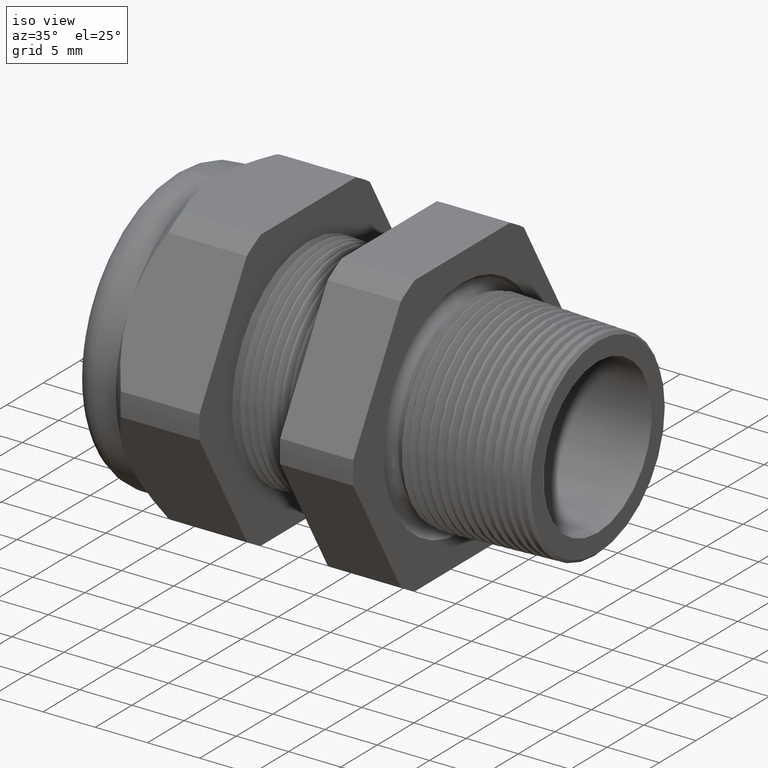
[diagram: clean part render]
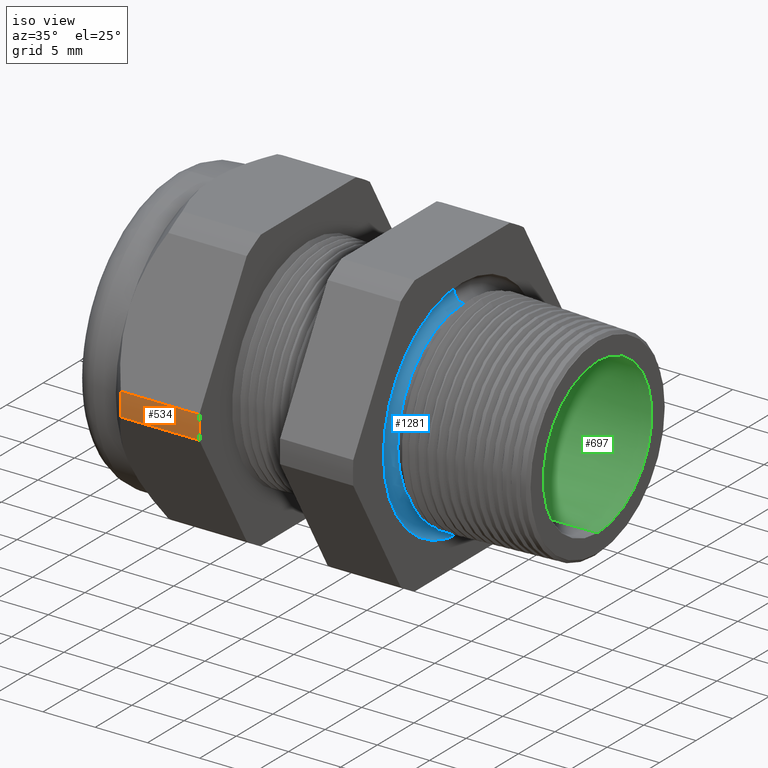
[diagram: same view with three faces highlighted in distinct colors, each labeled with its STEP entity id]
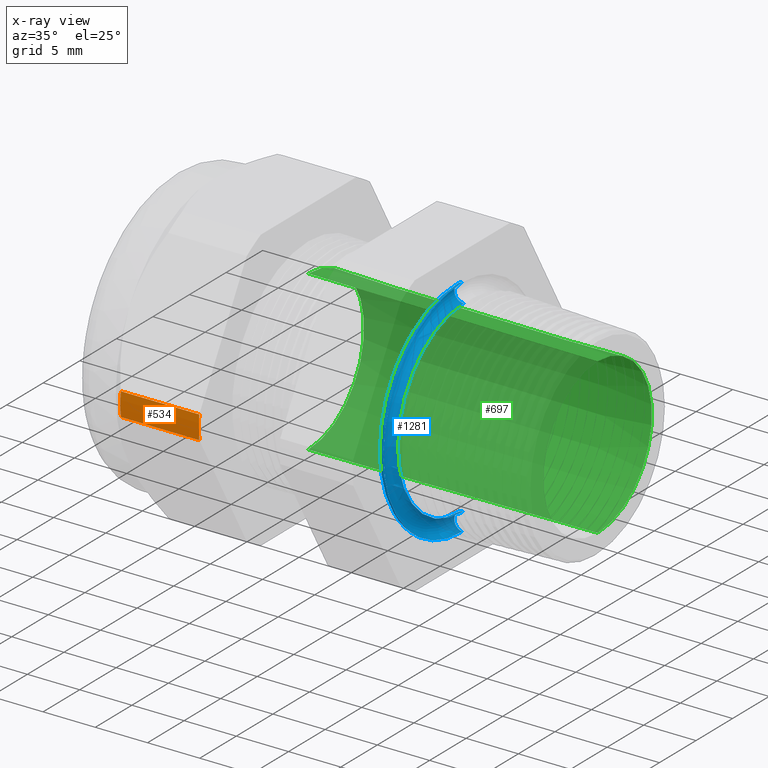
[diagram: x-ray of the same camera — body ghosted, the three highlighted faces saturated]
A machine part, iso view with three faces highlighted in distinct colors.
The next image is the same camera in x-ray (body ghosted, the three faces saturated) — at least one of them is partly hidden behind the body in this view.
Their STEP definitions:

[orange] entity #534 — the highlighted cylindrical surface (partial cylindrical patch) has radius 14.9428 mm, axis along (-1, 0, 0).
#467 = EDGE_CURVE ( 'NONE', #468, #469, #2465, .T. ) ;
#468 = VERTEX_POINT ( 'NONE', #2461 ) ;
#469 = VERTEX_POINT ( 'NONE', #2460 ) ;
#515 = ORIENTED_EDGE ( 'NONE', *, *, #467, .F. ) ;
#516 = ORIENTED_EDGE ( 'NONE', *, *, #517, .F. ) ;
#517 = EDGE_CURVE ( 'NONE', #538, #468, #2602, .T. ) ;
#534 = ADVANCED_FACE ( 'NONE', ( #2612 ), #2610, .T. ) ;
#535 = EDGE_LOOP ( 'NONE', ( #536, #540, #515, #516 ) ) ;
#536 = ORIENTED_EDGE ( 'NONE', *, *, #537, .T. ) ;
#537 = EDGE_CURVE ( 'NONE', #538, #539, #2611, .T. ) ;
#538 = VERTEX_POINT ( 'NONE', #2658 ) ;
#539 = VERTEX_POINT ( 'NONE', #2657 ) ;
#540 = ORIENTED_EDGE ( 'NONE', *, *, #541, .T. ) ;
#541 = EDGE_CURVE ( 'NONE', #539, #469, #2656, .T. ) ;
#2460 = CARTESIAN_POINT ( 'NONE',  ( -1.186345669291338600, -0.5866618723924791300, -0.04387183015273717100 ) ) ;
#2461 = CARTESIAN_POINT ( 'NONE',  ( -0.8903149606299207700, -0.5866618723924791300, -0.04387183015273717100 ) ) ;
#2462 = DIRECTION ( 'NONE',  ( -1.000000000000000000, 0.0000000000000000000, 0.0000000000000000000 ) ) ;
#2463 = VECTOR ( 'NONE', #2462, 39.37007874015748100 ) ;
#2464 = CARTESIAN_POINT ( 'NONE',  ( 0.2000000000000000400, -0.5866618723924791300, -0.04387183015273717100 ) ) ;
#2465 = LINE ( 'NONE', #2464, #2463 ) ;
#2598 = DIRECTION ( 'NONE',  ( 0.0000000000000000000, 0.0000000000000000000, -1.000000000000000000 ) ) ;
#2599 = DIRECTION ( 'NONE',  ( 1.000000000000000000, 0.0000000000000000000, 0.0000000000000000000 ) ) ;
#2600 = CARTESIAN_POINT ( 'NONE',  ( -0.8903149606299211000, 0.0000000000000000000, 0.0000000000000000000 ) ) ;
#2601 = AXIS2_PLACEMENT_3D ( 'NONE', #2600, #2599, #2598 ) ;
#2602 = CIRCLE ( 'NONE', #2601, 0.5883000000000000500 ) ;
#2604 = VECTOR ( 'NONE', #2659, 39.37007874015748100 ) ;
#2605 = CARTESIAN_POINT ( 'NONE',  ( 0.2000000000000000400, -0.5866618723924792400, 0.04387183015273651100 ) ) ;
#2606 = DIRECTION ( 'NONE',  ( 0.0000000000000000000, 0.0000000000000000000, 1.000000000000000000 ) ) ;
#2607 = DIRECTION ( 'NONE',  ( -1.000000000000000000, 0.0000000000000000000, 0.0000000000000000000 ) ) ;
#2608 = CARTESIAN_POINT ( 'NONE',  ( 0.2000000000000000400, 0.0000000000000000000, 0.0000000000000000000 ) ) ;
#2609 = AXIS2_PLACEMENT_3D ( 'NONE', #2608, #2607, #2606 ) ;
#2610 = CYLINDRICAL_SURFACE ( 'NONE', #2609, 0.5883000000000000500 ) ;
#2611 = LINE ( 'NONE', #2605, #2604 ) ;
#2612 = FACE_OUTER_BOUND ( 'NONE', #535, .T. ) ;
#2652 = DIRECTION ( 'NONE',  ( 0.0000000000000000000, 0.0000000000000000000, -1.000000000000000000 ) ) ;
#2653 = DIRECTION ( 'NONE',  ( 1.000000000000000000, 0.0000000000000000000, 0.0000000000000000000 ) ) ;
#2654 = CARTESIAN_POINT ( 'NONE',  ( -1.186345669291338600, 0.0000000000000000000, 0.0000000000000000000 ) ) ;
#2655 = AXIS2_PLACEMENT_3D ( 'NONE', #2654, #2653, #2652 ) ;
#2656 = CIRCLE ( 'NONE', #2655, 0.5883000000000000500 ) ;
#2657 = CARTESIAN_POINT ( 'NONE',  ( -1.186345669291338300, -0.5866618723924792400, 0.04387183015273658100 ) ) ;
#2658 = CARTESIAN_POINT ( 'NONE',  ( -0.8903149606299207700, -0.5866618723924792400, 0.04387183015273651100 ) ) ;
#2659 = DIRECTION ( 'NONE',  ( -1.000000000000000000, 0.0000000000000000000, 0.0000000000000000000 ) ) ;

[blue] entity #1281 — the highlighted toroidal blend (fillet) surface has major radius 9.8993 mm and minor (blend) radius 0.889 mm.
#1203 = EDGE_CURVE ( 'NONE', #1214, #1204, #3654, .T. ) ;
#1204 = VERTEX_POINT ( 'NONE', #3645 ) ;
#1205 = ORIENTED_EDGE ( 'NONE', *, *, #1209, .F. ) ;
#1209 = EDGE_CURVE ( 'NONE', #1228, #1204, #3643, .T. ) ;
#1213 = EDGE_CURVE ( 'NONE', #1220, #1214, #3632, .T. ) ;
#1214 = VERTEX_POINT ( 'NONE', #3628 ) ;
#1220 = VERTEX_POINT ( 'NONE', #3679 ) ;
#1228 = VERTEX_POINT ( 'NONE', #3719 ) ;
#1230 = ORIENTED_EDGE ( 'NONE', *, *, #1270, .F. ) ;
#1231 = ORIENTED_EDGE ( 'NONE', *, *, #1213, .T. ) ;
#1270 = EDGE_CURVE ( 'NONE', #1220, #1228, #3725, .T. ) ;
#1273 = EDGE_LOOP ( 'NONE', ( #1230, #1231, #1282, #1205 ) ) ;
#1281 = ADVANCED_FACE ( 'NONE', ( #3771 ), #3770, .F. ) ;
#1282 = ORIENTED_EDGE ( 'NONE', *, *, #1203, .T. ) ;
#3628 = CARTESIAN_POINT ( 'NONE',  ( -0.3100000000000000000, 5.197106747389359900E-017, 0.4243759711786115300 ) ) ;
#3629 = DIRECTION ( 'NONE',  ( 0.0000000000000000000, 1.224646799147352700E-016, 1.000000000000000000 ) ) ;
#3630 = DIRECTION ( 'NONE',  ( 0.0000000000000000000, 1.000000000000000000, -1.224646799147353200E-016 ) ) ;
#3631 = AXIS2_PLACEMENT_3D ( 'NONE', #3637, #3630, #3629 ) ;
#3632 = CIRCLE ( 'NONE', #3631, 0.03499999999999996900 ) ;
#3637 = CARTESIAN_POINT ( 'NONE',  ( -0.3049999999999998300, 4.772876651899397700E-017, 0.3897349550272340400 ) ) ;
#3639 = DIRECTION ( 'NONE',  ( 0.0000000000000000000, 0.0000000000000000000, -1.000000000000000000 ) ) ;
#3640 = DIRECTION ( 'NONE',  ( 0.0000000000000000000, -1.000000000000000000, 0.0000000000000000000 ) ) ;
#3641 = CARTESIAN_POINT ( 'NONE',  ( -0.3049999999999998300, 0.0000000000000000000, -0.3897349550272340400 ) ) ;
#3642 = AXIS2_PLACEMENT_3D ( 'NONE', #3641, #3640, #3639 ) ;
#3643 = CIRCLE ( 'NONE', #3642, 0.03499999999999996900 ) ;
#3645 = CARTESIAN_POINT ( 'NONE',  ( -0.3100000000000000000, 0.0000000000000000000, -0.4243759711786115300 ) ) ;
#3646 = DIRECTION ( 'NONE',  ( 0.0000000000000000000, 0.0000000000000000000, -1.000000000000000000 ) ) ;
#3647 = DIRECTION ( 'NONE',  ( 1.000000000000000000, 0.0000000000000000000, 0.0000000000000000000 ) ) ;
#3648 = CARTESIAN_POINT ( 'NONE',  ( -0.3100000000000000000, 0.0000000000000000000, 0.0000000000000000000 ) ) ;
#3649 = AXIS2_PLACEMENT_3D ( 'NONE', #3648, #3647, #3646 ) ;
#3654 = CIRCLE ( 'NONE', #3649, 0.4243759711786115300 ) ;
#3679 = CARTESIAN_POINT ( 'NONE',  ( -0.3049999999999998300, 4.344250272197825000E-017, 0.3547349550272340700 ) ) ;
#3719 = CARTESIAN_POINT ( 'NONE',  ( -0.3049999999999998300, 0.0000000000000000000, -0.3547349550272340700 ) ) ;
#3721 = DIRECTION ( 'NONE',  ( 0.0000000000000000000, 0.0000000000000000000, -1.000000000000000000 ) ) ;
#3722 = DIRECTION ( 'NONE',  ( 1.000000000000000000, 0.0000000000000000000, 0.0000000000000000000 ) ) ;
#3723 = CARTESIAN_POINT ( 'NONE',  ( -0.3049999999999998300, 0.0000000000000000000, 0.0000000000000000000 ) ) ;
#3724 = AXIS2_PLACEMENT_3D ( 'NONE', #3723, #3722, #3721 ) ;
#3725 = CIRCLE ( 'NONE', #3724, 0.3547349550272340700 ) ;
#3766 = DIRECTION ( 'NONE',  ( 0.0000000000000000000, 0.0000000000000000000, -1.000000000000000000 ) ) ;
#3767 = DIRECTION ( 'NONE',  ( 1.000000000000000000, 0.0000000000000000000, 0.0000000000000000000 ) ) ;
#3768 = CARTESIAN_POINT ( 'NONE',  ( -0.3049999999999998300, 0.0000000000000000000, 0.0000000000000000000 ) ) ;
#3769 = AXIS2_PLACEMENT_3D ( 'NONE', #3768, #3767, #3766 ) ;
#3770 = TOROIDAL_SURFACE ( 'NONE', #3769, 0.3897349550272340400, 0.03499999999999994800 ) ;
#3771 = FACE_OUTER_BOUND ( 'NONE', #1273, .T. ) ;

[green] entity #697 — the highlighted conical surface has half-angle 0.424 deg.
#144 = EDGE_CURVE ( 'NONE', #147, #145, #1872, .T. ) ;
#145 = VERTEX_POINT ( 'NONE', #1863 ) ;
#147 = VERTEX_POINT ( 'NONE', #1862 ) ;
#150 = VERTEX_POINT ( 'NONE', #1856 ) ;
#151 = EDGE_CURVE ( 'NONE', #150, #152, #1855, .T. ) ;
#152 = VERTEX_POINT ( 'NONE', #1851 ) ;
#696 = EDGE_CURVE ( 'NONE', #152, #145, #2973, .T. ) ;
#697 = ADVANCED_FACE ( 'NONE', ( #2968 ), #2967, .F. ) ;
#698 = EDGE_LOOP ( 'NONE', ( #699, #700, #702, #703 ) ) ;
#699 = ORIENTED_EDGE ( 'NONE', *, *, #151, .F. ) ;
#700 = ORIENTED_EDGE ( 'NONE', *, *, #701, .T. ) ;
#701 = EDGE_CURVE ( 'NONE', #150, #147, #2966, .T. ) ;
#702 = ORIENTED_EDGE ( 'NONE', *, *, #144, .T. ) ;
#703 = ORIENTED_EDGE ( 'NONE', *, *, #696, .F. ) ;
#1851 = CARTESIAN_POINT ( 'NONE',  ( -0.8903149606299211000, 0.0000000000000000000, -0.2999999999999999900 ) ) ;
#1852 = DIRECTION ( 'NONE',  ( -0.9999725783074426800, 9.069221333532394100E-019, -0.007405581217251161100 ) ) ;
#1853 = VECTOR ( 'NONE', #1852, 39.37007874015748900 ) ;
#1854 = CARTESIAN_POINT ( 'NONE',  ( -0.8903149606299211000, 3.673940397442058900E-017, -0.2999999999999999900 ) ) ;
#1855 = LINE ( 'NONE', #1854, #1853 ) ;
#1856 = CARTESIAN_POINT ( 'NONE',  ( 0.2000000000000000400, 3.624497503128140000E-017, -0.2919253625864464100 ) ) ;
#1862 = CARTESIAN_POINT ( 'NONE',  ( 0.2000000000000000400, 0.0000000000000000000, 0.2919253625864464100 ) ) ;
#1863 = CARTESIAN_POINT ( 'NONE',  ( -0.8903149606299211000, 3.673940397442058900E-017, 0.2999999999999999900 ) ) ;
#1864 = DIRECTION ( 'NONE',  ( -0.9999725783074426800, 0.0000000000000000000, 0.007405581217251161100 ) ) ;
#1865 = VECTOR ( 'NONE', #1864, 39.37007874015748900 ) ;
#1866 = CARTESIAN_POINT ( 'NONE',  ( -0.8903149606299211000, 0.0000000000000000000, 0.2999999999999999900 ) ) ;
#1872 = LINE ( 'NONE', #1866, #1865 ) ;
#2958 = DIRECTION ( 'NONE',  ( 0.0000000000000000000, 0.0000000000000000000, -1.000000000000000000 ) ) ;
#2959 = DIRECTION ( 'NONE',  ( 1.000000000000000000, 0.0000000000000000000, 0.0000000000000000000 ) ) ;
#2960 = CARTESIAN_POINT ( 'NONE',  ( 0.2000000000000000400, 0.0000000000000000000, 0.0000000000000000000 ) ) ;
#2961 = AXIS2_PLACEMENT_3D ( 'NONE', #2960, #2959, #2958 ) ;
#2962 = DIRECTION ( 'NONE',  ( 0.0000000000000000000, 0.0000000000000000000, 1.000000000000000000 ) ) ;
#2963 = DIRECTION ( 'NONE',  ( -1.000000000000000000, 0.0000000000000000000, 0.0000000000000000000 ) ) ;
#2964 = CARTESIAN_POINT ( 'NONE',  ( -0.8903149606299211000, 0.0000000000000000000, 0.0000000000000000000 ) ) ;
#2965 = AXIS2_PLACEMENT_3D ( 'NONE', #2964, #2963, #2962 ) ;
#2966 = CIRCLE ( 'NONE', #2961, 0.2919253625864464100 ) ;
#2967 = CONICAL_SURFACE ( 'NONE', #2965, 0.2999999999999999900, 0.007405648909184102100 ) ;
#2968 = FACE_OUTER_BOUND ( 'NONE', #698, .T. ) ;
#2969 = DIRECTION ( 'NONE',  ( 0.0000000000000000000, 0.0000000000000000000, -1.000000000000000000 ) ) ;
#2970 = DIRECTION ( 'NONE',  ( 1.000000000000000000, 0.0000000000000000000, 0.0000000000000000000 ) ) ;
#2971 = CARTESIAN_POINT ( 'NONE',  ( -0.8903149606299211000, 0.0000000000000000000, 0.0000000000000000000 ) ) ;
#2972 = AXIS2_PLACEMENT_3D ( 'NONE', #2971, #2970, #2969 ) ;
#2973 = CIRCLE ( 'NONE', #2972, 0.2999999999999999900 ) ;